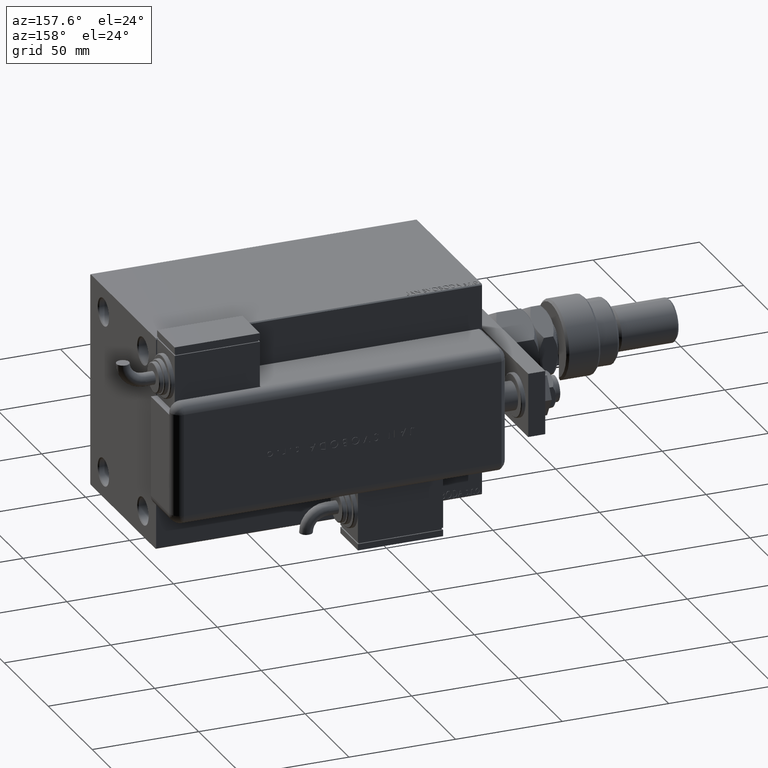
[diagram: clean part render]
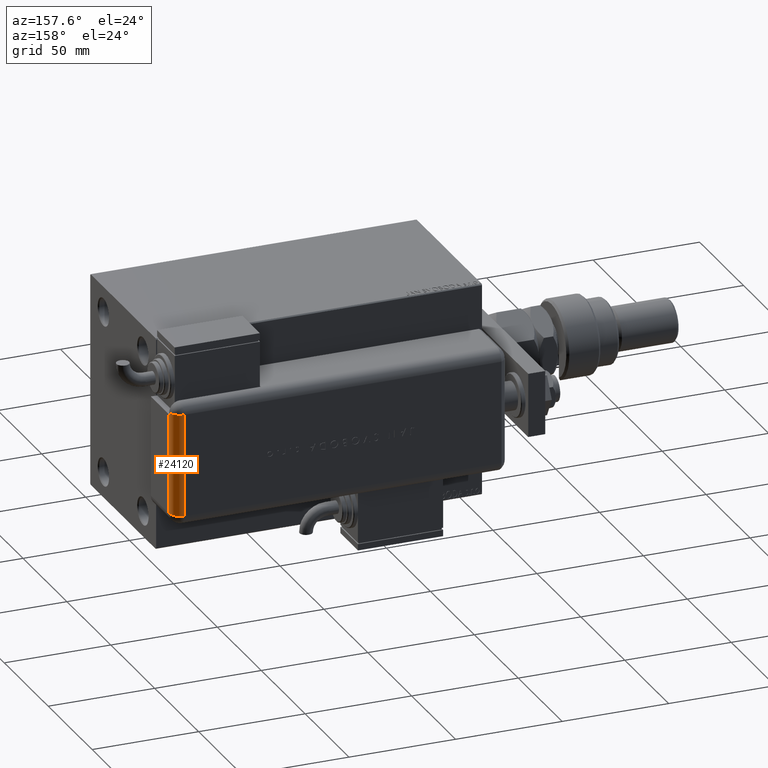
[diagram: same view with one face highlighted and labeled with its STEP entity id]
A machine part, auxiliary view. The second image highlights one B-rep face of the part: STEP entity #24120.
In plain terms, the highlighted cylindrical surface (edge-blend (fillet) strip) has radius 5 mm, axis along (0, 0, 1).
Its self-contained STEP definition (entity closure, byte-faithful):
#3365 = VERTEX_POINT ( 'NONE', #9809 ) ;
#4363 = DIRECTION ( 'NONE',  ( 1.000000000000000000, -0.000000000000000000, 0.000000000000000000 ) ) ;
#4611 = CARTESIAN_POINT ( 'NONE',  ( 23.99999999999999289, 20.79999999999998295, 5.000000000000000000 ) ) ;
#5540 = ORIENTED_EDGE ( 'NONE', *, *, #23666, .T. ) ;
#7504 = CARTESIAN_POINT ( 'NONE',  ( 23.99999999999999289, 21.00000000000000000, 0.004001601281283882067 ) ) ;
#8216 = DIRECTION ( 'NONE',  ( -1.000000000000000000, -0.000000000000000000, 0.000000000000000000 ) ) ;
#8264 = DIRECTION ( 'NONE',  ( 1.000000000000000000, -0.000000000000000000, -0.000000000000000000 ) ) ;
#8938 = CIRCLE ( 'NONE', #18075, 5.000000000000000000 ) ;
#9809 = CARTESIAN_POINT ( 'NONE',  ( 23.00000000000000000, 21.00000000000000000, 0.004001601281286050471 ) ) ;
#10386 = CIRCLE ( 'NONE', #53186, 5.000000000000000000 ) ;
#10875 = EDGE_CURVE ( 'NONE', #36632, #57957, #10386, .T. ) ;
#11717 = ORIENTED_EDGE ( 'NONE', *, *, #53287, .F. ) ;
#11744 = ORIENTED_EDGE ( 'NONE', *, *, #12770, .F. ) ;
#11831 = CARTESIAN_POINT ( 'NONE',  ( -28.99999999999999645, 20.79999999999998295, 5.000000000000004441 ) ) ;
#12275 = VERTEX_POINT ( 'NONE', #56814 ) ;
#12770 = EDGE_CURVE ( 'NONE', #57957, #59003, #45313, .T. ) ;
#14260 = DIRECTION ( 'NONE',  ( 0.000000000000000000, 0.000000000000000000, -1.000000000000000000 ) ) ;
#14310 = ORIENTED_EDGE ( 'NONE', *, *, #10875, .F. ) ;
#15730 = CARTESIAN_POINT ( 'NONE',  ( -23.99999999999999645, 25.79999999999998295, 5.000000000000004441 ) ) ;
#18075 = AXIS2_PLACEMENT_3D ( 'NONE', #61484, #8216, #37225 ) ;
#21090 = DIRECTION ( 'NONE',  ( -1.000000000000000000, 0.000000000000000000, 0.000000000000000000 ) ) ;
#21981 = LINE ( 'NONE', #51953, #56550 ) ;
#22026 = DIRECTION ( 'NONE',  ( 0.000000000000000000, 0.000000000000000000, -1.000000000000000000 ) ) ;
#22932 = VECTOR ( 'NONE', #29902, 1000.000000000000000 ) ;
#23419 = DIRECTION ( 'NONE',  ( 1.000000000000000000, -0.000000000000000000, 0.000000000000000000 ) ) ;
#23666 = EDGE_CURVE ( 'NONE', #3365, #56369, #8938, .T. ) ;
#23710 = EDGE_CURVE ( 'NONE', #12275, #59003, #51697, .T. ) ;
#23956 = CARTESIAN_POINT ( 'NONE',  ( 23.99999999999999289, 25.79999999999998295, 5.000000000000004441 ) ) ;
#24120 = ADVANCED_FACE ( 'NONE', ( #31588 ), #36046, .T. ) ;
#25185 = CARTESIAN_POINT ( 'NONE',  ( 23.00000000000000000, 20.79999999999998295, 1.734723475976807094E-15 ) ) ;
#25734 = LINE ( 'NONE', #54781, #22932 ) ;
#27241 = AXIS2_PLACEMENT_3D ( 'NONE', #11831, #51686, #22026 ) ;
#28877 = ORIENTED_EDGE ( 'NONE', *, *, #23710, .T. ) ;
#29902 = DIRECTION ( 'NONE',  ( 1.000000000000000000, 0.000000000000000000, 0.000000000000000000 ) ) ;
#31588 = FACE_OUTER_BOUND ( 'NONE', #43333, .T. ) ;
#33943 = DIRECTION ( 'NONE',  ( 0.000000000000000000, 0.000000000000000000, -1.000000000000000000 ) ) ;
#36046 = CYLINDRICAL_SURFACE ( 'NONE', #27241, 5.000000000000000000 ) ;
#36632 = VERTEX_POINT ( 'NONE', #7504 ) ;
#37225 = DIRECTION ( 'NONE',  ( 0.000000000000000000, 1.526556658859590243E-14, -1.000000000000000000 ) ) ;
#38962 = VECTOR ( 'NONE', #21090, 1000.000000000000000 ) ;
#39774 = EDGE_CURVE ( 'NONE', #3365, #36632, #25734, .T. ) ;
#43333 = EDGE_LOOP ( 'NONE', ( #55615, #5540, #11717, #28877, #11744, #14310 ) ) ;
#44575 = AXIS2_PLACEMENT_3D ( 'NONE', #59215, #4363, #14260 ) ;
#45313 = LINE ( 'NONE', #50430, #38962 ) ;
#50430 = CARTESIAN_POINT ( 'NONE',  ( -23.99999999999999645, 25.79999999999998295, 5.000000000000004441 ) ) ;
#51686 = DIRECTION ( 'NONE',  ( 1.000000000000000000, 0.000000000000000000, 0.000000000000000000 ) ) ;
#51697 = CIRCLE ( 'NONE', #44575, 5.000000000000000000 ) ;
#51953 = CARTESIAN_POINT ( 'NONE',  ( 23.99999999999999289, 20.79999999999998295, 0.000000000000000000 ) ) ;
#53186 = AXIS2_PLACEMENT_3D ( 'NONE', #4611, #23419, #33943 ) ;
#53287 = EDGE_CURVE ( 'NONE', #12275, #56369, #21981, .T. ) ;
#54781 = CARTESIAN_POINT ( 'NONE',  ( -28.99999999999999645, 21.00000000000000000, 0.004001601281286050471 ) ) ;
#55615 = ORIENTED_EDGE ( 'NONE', *, *, #39774, .F. ) ;
#56369 = VERTEX_POINT ( 'NONE', #25185 ) ;
#56550 = VECTOR ( 'NONE', #8264, 1000.000000000000000 ) ;
#56814 = CARTESIAN_POINT ( 'NONE',  ( -23.99999999999999645, 20.79999999999998295, 0.000000000000000000 ) ) ;
#57957 = VERTEX_POINT ( 'NONE', #23956 ) ;
#59003 = VERTEX_POINT ( 'NONE', #15730 ) ;
#59215 = CARTESIAN_POINT ( 'NONE',  ( -23.99999999999999645, 20.79999999999998295, 5.000000000000002665 ) ) ;
#61484 = CARTESIAN_POINT ( 'NONE',  ( 23.00000000000000000, 20.79999999999998295, 5.000000000000004441 ) ) ;